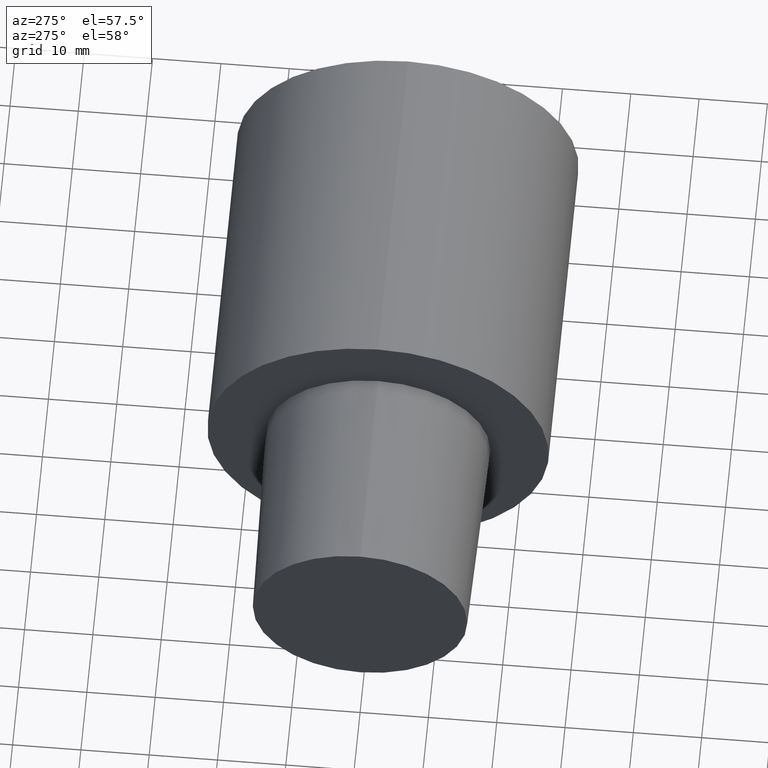
[diagram: clean part render]
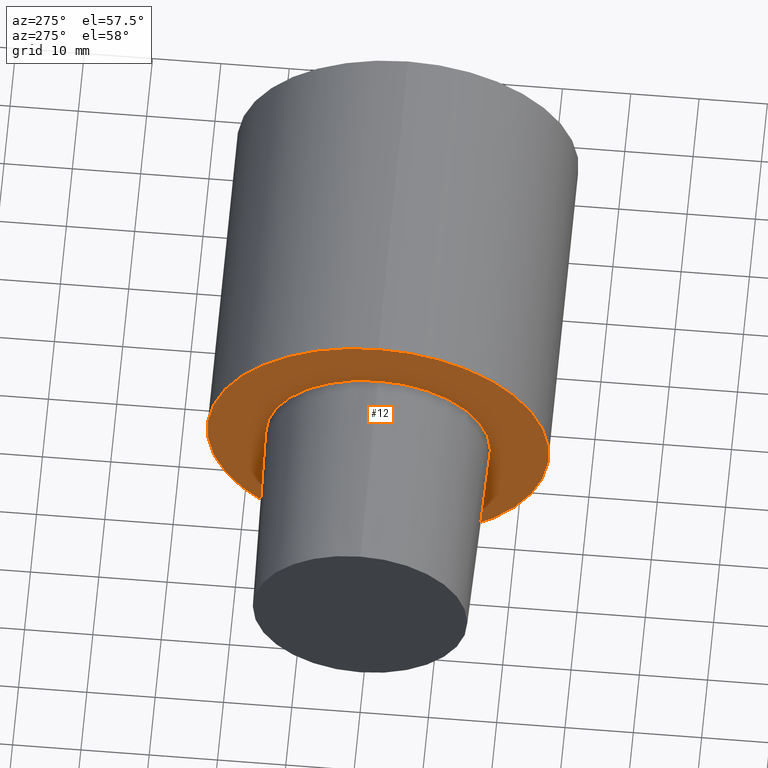
[diagram: same view with one face highlighted and labeled with its STEP entity id]
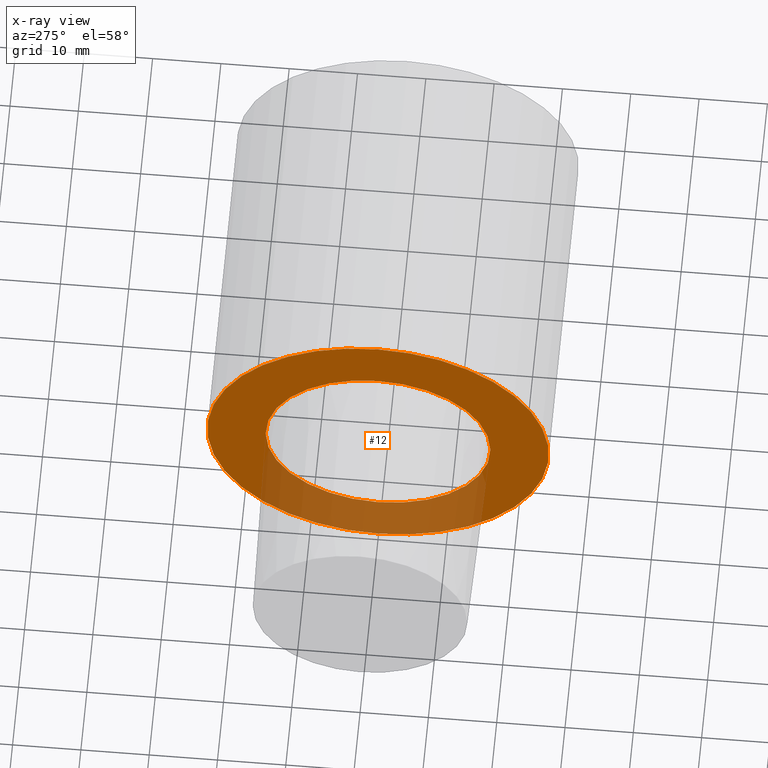
[diagram: x-ray of the same camera — body ghosted, the highlighted face saturated]
A machine part, auxiliary view. The second image highlights one B-rep face of the part: STEP entity #12.
The next image is the same camera in x-ray: the body ghosted, the highlighted face saturated — about 29% of this face is hidden behind the body in this view.
In plain terms, the highlighted planar face has unit normal (1, 0, 0).
Its self-contained STEP definition (entity closure, byte-faithful):
#12 = ADVANCED_FACE ( 'NONE', ( #197, #50 ), #226, .F. ) ;
#17 = DIRECTION ( 'NONE',  ( 0.000000000000000000, 1.000000000000000000, 0.000000000000000000 ) ) ;
#21 = CARTESIAN_POINT ( 'NONE',  ( 0.000000000000000000, 0.000000000000000000, -16.45500658257258664 ) ) ;
#22 = AXIS2_PLACEMENT_3D ( 'NONE', #100, #43, #236 ) ;
#34 = ORIENTED_EDGE ( 'NONE', *, *, #177, .T. ) ;
#35 = CARTESIAN_POINT ( 'NONE',  ( 0.000000000000000000, 3.061616994745535943E-15, -24.99999997449999967 ) ) ;
#43 = DIRECTION ( 'NONE',  ( -1.000000000000000000, 0.000000000000000000, 0.000000000000000000 ) ) ;
#50 = FACE_OUTER_BOUND ( 'NONE', #71, .T. ) ;
#53 = VERTEX_POINT ( 'NONE', #149 ) ;
#54 = DIRECTION ( 'NONE',  ( -1.000000000000000000, 0.000000000000000000, 0.000000000000000000 ) ) ;
#64 = EDGE_CURVE ( 'NONE', #53, #170, #65, .T. ) ;
#65 = CIRCLE ( 'NONE', #167, 16.45500658257258664 ) ;
#71 = EDGE_LOOP ( 'NONE', ( #34, #248 ) ) ;
#78 = CIRCLE ( 'NONE', #145, 24.99999997449999967 ) ;
#85 = EDGE_LOOP ( 'NONE', ( #122, #225 ) ) ;
#89 = CARTESIAN_POINT ( 'NONE',  ( 0.000000000000000000, 24.99999997449999967, 0.000000000000000000 ) ) ;
#92 = DIRECTION ( 'NONE',  ( -1.000000000000000000, 0.000000000000000000, 0.000000000000000000 ) ) ;
#93 = DIRECTION ( 'NONE',  ( -1.000000000000000000, 0.000000000000000000, 0.000000000000000000 ) ) ;
#100 = CARTESIAN_POINT ( 'NONE',  ( 0.000000000000000000, 0.000000000000000000, 0.000000000000000000 ) ) ;
#110 = CARTESIAN_POINT ( 'NONE',  ( 0.000000000000000000, 0.000000000000000000, 0.000000000000000000 ) ) ;
#111 = DIRECTION ( 'NONE',  ( 0.000000000000000000, 0.000000000000000000, 1.000000000000000000 ) ) ;
#122 = ORIENTED_EDGE ( 'NONE', *, *, #144, .F. ) ;
#130 = AXIS2_PLACEMENT_3D ( 'NONE', #155, #54, #132 ) ;
#132 = DIRECTION ( 'NONE',  ( 0.000000000000000000, 0.000000000000000000, 1.000000000000000000 ) ) ;
#142 = EDGE_CURVE ( 'NONE', #156, #172, #78, .T. ) ;
#144 = EDGE_CURVE ( 'NONE', #170, #53, #154, .T. ) ;
#145 = AXIS2_PLACEMENT_3D ( 'NONE', #213, #93, #111 ) ;
#149 = CARTESIAN_POINT ( 'NONE',  ( 0.000000000000000000, 2.015157114129614578E-15, 16.45500658257258664 ) ) ;
#151 = DIRECTION ( 'NONE',  ( 1.000000000000000000, 0.000000000000000000, 0.000000000000000000 ) ) ;
#154 = CIRCLE ( 'NONE', #130, 16.45500658257258664 ) ;
#155 = CARTESIAN_POINT ( 'NONE',  ( 0.000000000000000000, 0.000000000000000000, 0.000000000000000000 ) ) ;
#156 = VERTEX_POINT ( 'NONE', #35 ) ;
#167 = AXIS2_PLACEMENT_3D ( 'NONE', #110, #92, #195 ) ;
#170 = VERTEX_POINT ( 'NONE', #21 ) ;
#172 = VERTEX_POINT ( 'NONE', #220 ) ;
#177 = EDGE_CURVE ( 'NONE', #172, #156, #189, .T. ) ;
#189 = CIRCLE ( 'NONE', #22, 24.99999997449999967 ) ;
#195 = DIRECTION ( 'NONE',  ( 0.000000000000000000, 0.000000000000000000, 1.000000000000000000 ) ) ;
#197 = FACE_BOUND ( 'NONE', #85, .T. ) ;
#201 = AXIS2_PLACEMENT_3D ( 'NONE', #89, #151, #17 ) ;
#213 = CARTESIAN_POINT ( 'NONE',  ( 0.000000000000000000, 0.000000000000000000, 0.000000000000000000 ) ) ;
#220 = CARTESIAN_POINT ( 'NONE',  ( 0.000000000000000000, 0.000000000000000000, 24.99999997449999967 ) ) ;
#225 = ORIENTED_EDGE ( 'NONE', *, *, #64, .F. ) ;
#226 = PLANE ( 'NONE',  #201 ) ;
#236 = DIRECTION ( 'NONE',  ( 0.000000000000000000, 0.000000000000000000, 1.000000000000000000 ) ) ;
#248 = ORIENTED_EDGE ( 'NONE', *, *, #142, .T. ) ;